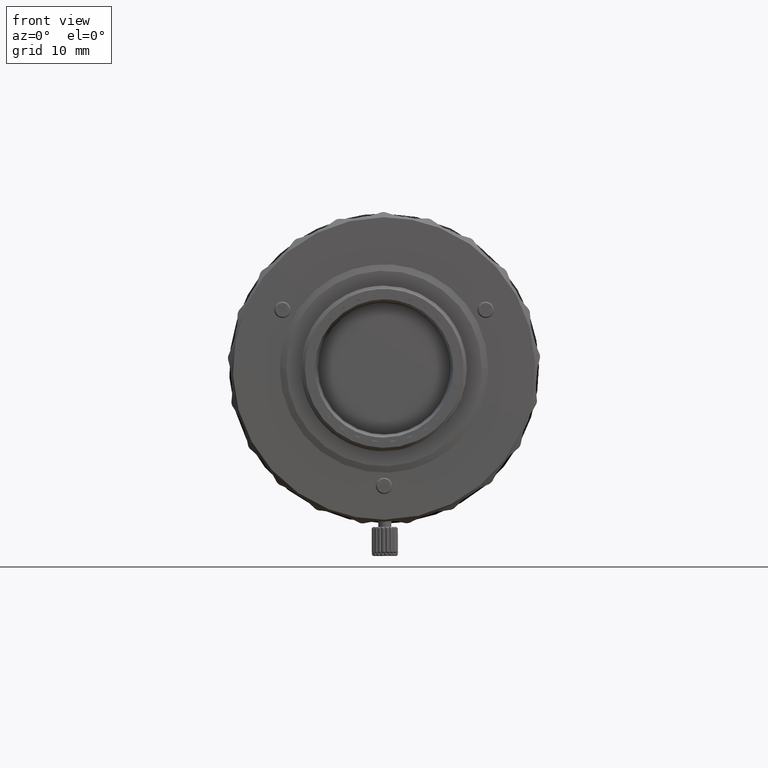
[diagram: clean part render]
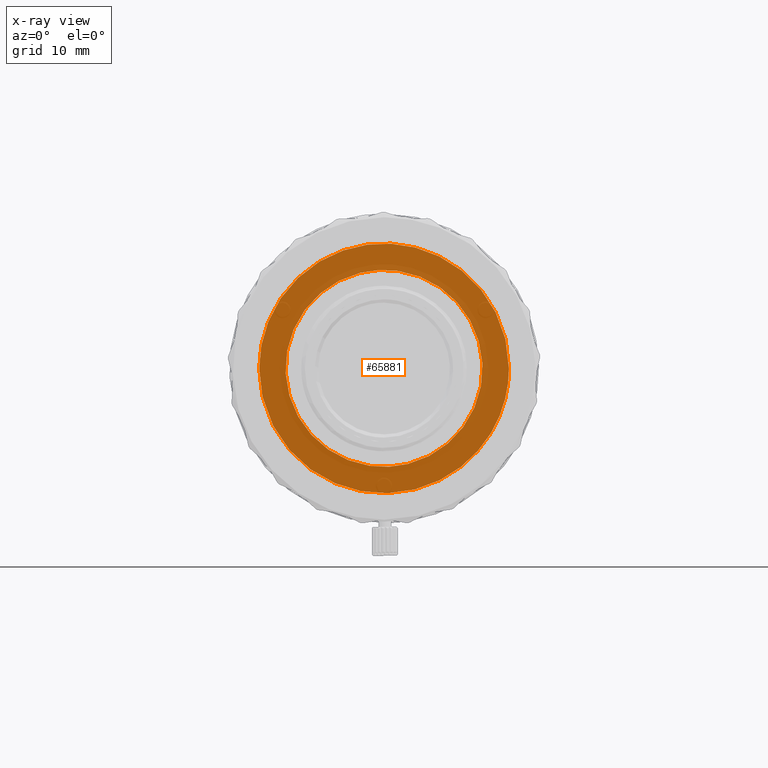
[diagram: x-ray — body ghosted, one internal face saturated and labeled with its STEP entity id]
A machine part, front view, then the same camera in x-ray: the body is ghosted and one INTERNAL B-rep face — a face not visible from any outside direction — is saturated and labeled: STEP entity #65881.
In plain terms, the highlighted face is a freeform B-spline surface patch.
Its self-contained STEP definition (entity closure, byte-faithful):
#655 = CARTESIAN_POINT ( 'NONE',  ( 14.90654364671266485, 78.89500000000001023, -2.490524131531334007 ) ) ;
#839 = CARTESIAN_POINT ( 'NONE',  ( -3.630246343410010290, 78.89499999915169326, 14.66861245485504028 ) ) ;
#1062 = CARTESIAN_POINT ( 'NONE',  ( 13.42969820995294228, 78.89500000000001023, -6.931935332601380395 ) ) ;
#1243 = CARTESIAN_POINT ( 'NONE',  ( -11.86235611299090209, 78.89500000000001023, -9.364422102009701376 ) ) ;
#1645 = CARTESIAN_POINT ( 'NONE',  ( -11.05874624287399755, 78.89500000000002444, -10.30111006777746674 ) ) ;
#1860 = CARTESIAN_POINT ( 'NONE',  ( 5.986201008622265896, 78.89500000000002444, -13.87710697493376166 ) ) ;
#1960 = CARTESIAN_POINT ( 'NONE',  ( -3.630246343410010290, 78.89499999915169326, 14.66861245485504028 ) ) ;
#2047 = CARTESIAN_POINT ( 'NONE',  ( -8.833252129546536935, 78.89499999999999602, -12.26300164020946859 ) ) ;
#2254 = CARTESIAN_POINT ( 'NONE',  ( 9.173707722116670737, 78.89500000000002444, -12.01049021053346699 ) ) ;
#2441 = CARTESIAN_POINT ( 'NONE',  ( -14.76521298622846601, 78.89500000000001023, 3.224506110859732821 ) ) ;
#2659 = CARTESIAN_POINT ( 'NONE',  ( 3.472875211644665505, 78.89500000000001023, 14.70873674128466746 ) ) ;
#2794 = ORIENTED_EDGE ( 'NONE', *, *, #29790, .F. ) ;
#2850 = CARTESIAN_POINT ( 'NONE',  ( -14.71018397306919567, 78.89499999999998181, 3.466879527880266210 ) ) ;
#3050 = CARTESIAN_POINT ( 'NONE',  ( 5.356196061968401700, 78.89499999999999602, 14.13218953882559781 ) ) ;
#3461 = CARTESIAN_POINT ( 'NONE',  ( -0.2093646693116016644, 78.89500000000001023, 15.11773220068173273 ) ) ;
#3874 = CARTESIAN_POINT ( 'NONE',  ( 8.223998769115794971, 78.89499999999999602, 12.67965212383650275 ) ) ;
#4286 = CARTESIAN_POINT ( 'NONE',  ( 10.88789578653479850, 78.89500000000002444, 10.48153855745113994 ) ) ;
#4454 = CARTESIAN_POINT ( 'NONE',  ( -19.37979999999999947, 78.89500000000001023, -19.37979999999999947 ) ) ;
#5399 = CARTESIAN_POINT ( 'NONE',  ( -4.112888684820299012, 78.89499999999999602, 14.54281526252829693 ) ) ;
#6201 = CARTESIAN_POINT ( 'NONE',  ( -5.296092157482133800, 78.89500000000002444, 14.15485505471693095 ) ) ;
#7214 = CARTESIAN_POINT ( 'NONE',  ( 7.317229974891466426, 78.89500000000001023, -13.23060467960293529 ) ) ;
#7397 = CARTESIAN_POINT ( 'NONE',  ( -15.10638585749626905, 78.89500000000001023, -0.4535984308533364540 ) ) ;
#7619 = CARTESIAN_POINT ( 'NONE',  ( 4.590198546451104811, 78.89500000000001023, -14.39928493660469400 ) ) ;
#7795 = CARTESIAN_POINT ( 'NONE',  ( -10.88789578653480028, 78.89500000000002444, -10.48153855745113638 ) ) ;
#8196 = CARTESIAN_POINT ( 'NONE',  ( -14.86324095001753243, 78.89499999999999602, 2.737338584760266702 ) ) ;
#8411 = CARTESIAN_POINT ( 'NONE',  ( 13.19538343056707852, 78.89500000000003865, -7.368200444494980239 ) ) ;
#8607 = CARTESIAN_POINT ( 'NONE',  ( -5.356196061968399924, 78.89500000000001023, -14.13218953882560136 ) ) ;
#8645 = CARTESIAN_POINT ( 'NONE',  ( -19.14999999683384857, 78.89500000000001023, -1.146359653401246171E-09 ) ) ;
#8809 = CARTESIAN_POINT ( 'NONE',  ( 8.162108185958102169, 78.89500000000002444, -12.71959201825583463 ) ) ;
#8996 = CARTESIAN_POINT ( 'NONE',  ( -13.57147329447066753, 78.89500000000002444, -6.650098486464399272 ) ) ;
#9207 = CARTESIAN_POINT ( 'NONE',  ( 6.273925612417464492, 78.89500000000001023, 13.74941602117746164 ) ) ;
#9407 = CARTESIAN_POINT ( 'NONE',  ( 1.925775454671200482, 78.89500000000002444, -14.98999041694000489 ) ) ;
#9624 = CARTESIAN_POINT ( 'NONE',  ( -3.148615653851063456, 78.89500000000001023, 14.78780831494413661 ) ) ;
#10031 = CARTESIAN_POINT ( 'NONE',  ( 14.72548991947146924, 78.89500000000002444, 3.401101902706934244 ) ) ;
#10226 = CARTESIAN_POINT ( 'NONE',  ( 3.630246343410010290, 78.89499999915169326, -14.66861245485504028 ) ) ;
#10254 = ORIENTED_EDGE ( 'NONE', *, *, #16160, .F. ) ;
#10638 = CARTESIAN_POINT ( 'NONE',  ( 0.2093646693116024138, 78.89499999999998181, -15.11773220068173096 ) ) ;
#11021 = CARTESIAN_POINT ( 'NONE',  ( -19.37979999999999947, 78.89500000000001023, 19.37979999999999947 ) ) ;
#11047 = CARTESIAN_POINT ( 'NONE',  ( -1.769641598556335627, 78.89500000000001023, -15.00924180961516363 ) ) ;
#11222 = CARTESIAN_POINT ( 'NONE',  ( -19.14999999683384857, 78.89500000000001023, -1.146359653401246171E-09 ) ) ;
#12343 = CARTESIAN_POINT ( 'NONE',  ( -11.34221474543226726, 78.89500000000002444, 9.988080768167336032 ) ) ;
#12857 = CARTESIAN_POINT ( 'NONE',  ( 19.14999999683384857, 78.89500000000001023, -5.236974208091460130E-09 ) ) ;
#13131 = CARTESIAN_POINT ( 'NONE',  ( -3.872456261358668161, 78.89499999999998181, 14.60866937654226660 ) ) ;
#13343 = CARTESIAN_POINT ( 'NONE',  ( 9.370016581924543786, 78.89500000000003865, -11.85798321615929574 ) ) ;
#13531 = CARTESIAN_POINT ( 'NONE',  ( -8.773321880988135035, 78.89500000000002444, 12.30599903399533623 ) ) ;
#13744 = CARTESIAN_POINT ( 'NONE',  ( 15.07175636419346709, 78.89499999999999602, 1.198375113820133953 ) ) ;
#13927 = CARTESIAN_POINT ( 'NONE',  ( -13.54216032630120026, 78.89500000000001023, 6.709504834429467657 ) ) ;
#14318 = CARTESIAN_POINT ( 'NONE',  ( -12.72534264767919332, 78.89499999999996760, -8.164295309436933934 ) ) ;
#14724 = CARTESIAN_POINT ( 'NONE',  ( -6.273925612417467157, 78.89499999999999602, -13.74941602117746520 ) ) ;
#14937 = CARTESIAN_POINT ( 'NONE',  ( 15.01658416661186557, 78.89500000000001023, -1.758571798656933138 ) ) ;
#15122 = CARTESIAN_POINT ( 'NONE',  ( -13.78290308819013532, 78.89500000000001023, -6.200022553898797639 ) ) ;
#15325 = CARTESIAN_POINT ( 'NONE',  ( 11.39175182688839350, 78.89499999999999602, 9.931602449584936210 ) ) ;
#15493 = FACE_OUTER_BOUND ( 'NONE', #48440, .T. ) ;
#15519 = CARTESIAN_POINT ( 'NONE',  ( -6.047308421762298991, 78.89500000000001023, -13.85058957844393035 ) ) ;
#15730 = CARTESIAN_POINT ( 'NONE',  ( 2.508256648531333788, 78.89499999999999602, 14.90360466128306349 ) ) ;
#16146 = CARTESIAN_POINT ( 'NONE',  ( 13.88197621105313395, 78.89500000000001023, 5.974865553654437278 ) ) ;
#16160 = EDGE_CURVE ( 'NONE', #43725, #78682, #62433, .T. ) ;
#16969 = CARTESIAN_POINT ( 'NONE',  ( 12.72534264767919510, 78.89500000000001023, 8.164295309436932158 ) ) ;
#18069 = CARTESIAN_POINT ( 'NONE',  ( -10.49456721585506713, 78.89499999999999602, 10.88369513736559924 ) ) ;
#18357 = ORIENTED_EDGE ( 'NONE', *, *, #57263, .T. ) ;
#18463 = CARTESIAN_POINT ( 'NONE',  ( -6.883582660542133524, 78.89499999999998181, 13.46127873100119920 ) ) ;
#18868 = CARTESIAN_POINT ( 'NONE',  ( -9.944811785864269282, 78.89500000000001023, 11.38018317155720283 ) ) ;
#19886 = CARTESIAN_POINT ( 'NONE',  ( 15.10638585749626195, 78.89499999999999602, 0.4535984308533356768 ) ) ;
#20073 = CARTESIAN_POINT ( 'NONE',  ( -3.232425268843834854, 78.89500000000001023, -14.76344838114923519 ) ) ;
#20463 = CARTESIAN_POINT ( 'NONE',  ( -13.19538343056706431, 78.89500000000001023, 7.368200444494999779 ) ) ;
#20675 = CARTESIAN_POINT ( 'NONE',  ( 3.630246343410010290, 78.89499999915169326, -14.66861245485504028 ) ) ;
#20856 = CARTESIAN_POINT ( 'NONE',  ( -11.39175182688839882, 78.89500000000001023, -9.931602449584930881 ) ) ;
#21072 = CARTESIAN_POINT ( 'NONE',  ( 14.71018397306919212, 78.89499999999999602, -3.466879527880267542 ) ) ;
#21251 = CARTESIAN_POINT ( 'NONE',  ( -14.87489744429223215, 78.89500000000001023, -2.673159815696701358 ) ) ;
#21458 = CARTESIAN_POINT ( 'NONE',  ( 10.53749954519240006, 78.89500000000001023, 10.83374489795326490 ) ) ;
#21647 = CARTESIAN_POINT ( 'NONE',  ( -13.42969820995293340, 78.89500000000001023, 6.931935332601405264 ) ) ;
#21855 = CARTESIAN_POINT ( 'NONE',  ( 14.77947075353796258, 78.89499999999996760, 3.158417565865098364 ) ) ;
#22152 = CARTESIAN_POINT ( 'NONE',  ( -19.14999999312184187, 78.89500000000001023, -38.29999998085001067 ) ) ;
#22679 = CARTESIAN_POINT ( 'NONE',  ( 1.025547956640528779, 78.89500000000001023, 15.07833398459226082 ) ) ;
#23098 = CARTESIAN_POINT ( 'NONE',  ( 14.91664810647439232, 78.89499999999998181, 2.429358369043465693 ) ) ;
#23702 = CARTESIAN_POINT ( 'NONE',  ( 2.662294094781194165, 78.89500000000001023, -14.88305229294400434 ) ) ;
#24138 = ORIENTED_EDGE ( 'NONE', *, *, #48326, .T. ) ;
#24277 = CARTESIAN_POINT ( 'NONE',  ( -19.14999999999999858, 78.89500000000001023, 11.21781028237952960 ) ) ;
#24676 = CARTESIAN_POINT ( 'NONE',  ( 3.927726403914407392E-09, 78.89500000000001023, 19.14999999999999858 ) ) ;
#25000 = CARTESIAN_POINT ( 'NONE',  ( -5.527680418645732452, 78.89500000000001023, 14.06603887511203155 ) ) ;
#25620 = CARTESIAN_POINT ( 'NONE',  ( 15.06594728206333222, 78.89500000000002444, -1.267740379248928129 ) ) ;
#25798 = CARTESIAN_POINT ( 'NONE',  ( -4.828259702804265530, 78.89500000000001023, 14.32118787295826401 ) ) ;
#26018 = CARTESIAN_POINT ( 'NONE',  ( 14.76521298622845713, 78.89499999999999602, -3.224506110859746144 ) ) ;
#26196 = CARTESIAN_POINT ( 'NONE',  ( -3.472875211644665505, 78.89499999999999602, -14.70873674128466568 ) ) ;
#26405 = CARTESIAN_POINT ( 'NONE',  ( 5.527680418645736893, 78.89500000000002444, -14.06603887511203510 ) ) ;
#26591 = CARTESIAN_POINT ( 'NONE',  ( -14.37759569105823410, 78.89500000000001023, 4.657562563292833246 ) ) ;
#26989 = CARTESIAN_POINT ( 'NONE',  ( -8.223998769115800300, 78.89500000000001023, -12.67965212383650098 ) ) ;
#27197 = CARTESIAN_POINT ( 'NONE',  ( 14.52205449027995954, 78.89499999999999602, -4.185460622396170116 ) ) ;
#27376 = CARTESIAN_POINT ( 'NONE',  ( -14.90654364671266663, 78.89499999999999602, 2.490524131531335339 ) ) ;
#27597 = CARTESIAN_POINT ( 'NONE',  ( 8.017651437765197286, 78.89500000000001023, 12.81114812044466689 ) ) ;
#27784 = CARTESIAN_POINT ( 'NONE',  ( -15.06594728206332867, 78.89499999999999602, 1.267740379248932348 ) ) ;
#28006 = CARTESIAN_POINT ( 'NONE',  ( 2.749134594215164817, 78.89499999999999602, 14.86103093253496432 ) ) ;
#28190 = CARTESIAN_POINT ( 'NONE',  ( -0.2854376194369321329, 78.89499999999999602, -15.11653083395986030 ) ) ;
#28405 = CARTESIAN_POINT ( 'NONE',  ( -0.9476607471584020947, 78.89500000000003865, 15.08341852059973398 ) ) ;
#28814 = CARTESIAN_POINT ( 'NONE',  ( 13.22726845995279632, 78.89499999999999602, 7.310831297875970414 ) ) ;
#29226 = CARTESIAN_POINT ( 'NONE',  ( 1.769641598556338957, 78.89500000000001023, 15.00924180961516718 ) ) ;
#29790 = EDGE_CURVE ( 'NONE', #78682, #43725, #42824, .T. ) ;
#32131 = CARTESIAN_POINT ( 'NONE',  ( 11.96729612469746229, 78.89500000000001023, -9.229969258256268461 ) ) ;
#32304 = CARTESIAN_POINT ( 'NONE',  ( -13.22726845995279987, 78.89500000000001023, -7.310831297875965085 ) ) ;
#32703 = CARTESIAN_POINT ( 'NONE',  ( -14.77947075353796080, 78.89499999999998181, -3.158417565865098364 ) ) ;
#32910 = CARTESIAN_POINT ( 'NONE',  ( 14.58809588422120029, 78.89499999999999602, -3.949205669862931423 ) ) ;
#33101 = CARTESIAN_POINT ( 'NONE',  ( -10.35689858175866540, 78.89499999999999602, -11.00648358634586543 ) ) ;
#33312 = CARTESIAN_POINT ( 'NONE',  ( 13.54216032630119670, 78.89500000000002444, -6.709504834429469433 ) ) ;
#33497 = CARTESIAN_POINT ( 'NONE',  ( -4.660661861657999339, 78.89499999999999602, -14.38290849203999322 ) ) ;
#33705 = CARTESIAN_POINT ( 'NONE',  ( 9.425729979800934188, 78.89500000000001023, 11.82138669576626455 ) ) ;
#33894 = CARTESIAN_POINT ( 'NONE',  ( -13.10426037323919424, 78.89499999999998181, -7.529012907326530168 ) ) ;
#34106 = CARTESIAN_POINT ( 'NONE',  ( 6.047308421762298991, 78.89500000000002444, 13.85058957844393923 ) ) ;
#34294 = CARTESIAN_POINT ( 'NONE',  ( 1.193186727924394175, 78.89500000000002444, -15.06599023739003584 ) ) ;
#34509 = CARTESIAN_POINT ( 'NONE',  ( 4.190638856506659238, 78.89500000000002444, 14.52684072917586988 ) ) ;
#34920 = CARTESIAN_POINT ( 'NONE',  ( 11.05874624287400110, 78.89500000000001023, 10.30111006777746852 ) ) ;
#34975 = B_SPLINE_CURVE_WITH_KNOTS ( 'NONE', 3,
 ( #839, #13131, #5399, #55655, #25798, #6201, #25000, #80550, #38035, #18463, #68298, #69489, #62996, #50707, #13531, #49108, #74017, #49920, #18868, #18069, #42977, #12343, #37237, #37638, #62201, #69888, #44981, #57246, #20463, #21647, #13927, #58457, #58855, #51509, #26591, #52295, #52692, #2850, #2441, #8196, #27376, #45375, #27784, #46164, #40039, #77197, #7397, #38835, #63773, #76409, #21251, #32703, #39631, #64983, #71066, #70285, #57651, #51119, #15122, #8996, #70673, #32304, #33894, #14318, #39236, #76799, #1243, #77603, #20856, #1645, #7795, #64184, #33101, #46562, #58051, #2047, #51907, #26989, #71469, #45770, #76008, #14724, #15519, #64580, #8607, #33497, #63383, #26196, #20073, #53527, #40840, #66605, #11047, #46966, #47385, #28190, #10638, #78839, #34294, #35538, #9407, #23702, #60493, #10226 ),
 .UNSPECIFIED., .F., .F.,
 ( 4, 2, 2, 2, 2, 2, 2, 2, 2, 2, 2, 2, 2, 2, 2, 2, 2, 2, 2, 2, 2, 2, 2, 2, 2, 2, 2, 2, 2, 2, 2, 2, 2, 2, 2, 2, 2, 2, 2, 2, 2, 2, 2, 2, 2, 2, 2, 2, 2, 2, 2, 4 ),
 ( 0.000000000000000000, 0.01562499999999997224, 0.03124999999999994449, 0.04687499999999991673, 0.06249999999999988898, 0.09374999999999983347, 0.1093749999999997502, 0.1249999999999996669, 0.1406249999999995837, 0.1562499999999995004, 0.1874999999999994171, 0.2031249999999994171, 0.2187499999999994171, 0.2499999999999993339, 0.2656249999999993894, 0.2812499999999993894, 0.3124999999999994449, 0.3281249999999994449, 0.3437499999999995004, 0.3593749999999995004, 0.3749999999999995559, 0.4062499999999996669, 0.4218749999999997224, 0.4374999999999998335, 0.4687499999999999445, 0.4843749999999999445, 0.5000000000000000000, 0.5312500000000000000, 0.5468750000000000000, 0.5625000000000000000, 0.5781250000000000000, 0.5937499999999998890, 0.6250000000000000000, 0.6406250000000000000, 0.6562499999999998890, 0.6718749999999998890, 0.6874999999999998890, 0.7187499999999997780, 0.7343749999999997780, 0.7499999999999997780, 0.7812499999999997780, 0.7968749999999997780, 0.8124999999999997780, 0.8437499999999997780, 0.8593749999999997780, 0.8749999999999997780, 0.8906249999999997780, 0.9062499999999996669, 0.9374999999999997780, 0.9531249999999998890, 0.9687499999999998890, 1.000000000000000000 ),
 .UNSPECIFIED. ) ;
#35538 = CARTESIAN_POINT ( 'NONE',  ( 1.683093265757194867, 78.89500000000001023, -15.01915289127256337 ) ) ;
#37237 = CARTESIAN_POINT ( 'NONE',  ( -11.50340622224236675, 78.89499999999999602, 9.802010986671932713 ) ) ;
#37638 = CARTESIAN_POINT ( 'NONE',  ( -11.81649977234943272, 78.89499999999999602, 9.422213521550865778 ) ) ;
#38035 = CARTESIAN_POINT ( 'NONE',  ( -6.214815219838134119, 78.89500000000002444, 13.77619927945359990 ) ) ;
#38835 = CARTESIAN_POINT ( 'NONE',  ( -15.07175636419346176, 78.89499999999999602, -1.198375113820133508 ) ) ;
#39057 = CARTESIAN_POINT ( 'NONE',  ( 14.37759569105823942, 78.89500000000001023, -4.657562563292819924 ) ) ;
#39236 = CARTESIAN_POINT ( 'NONE',  ( -12.45273942999093286, 78.89500000000001023, -8.574350598416527802 ) ) ;
#39452 = CARTESIAN_POINT ( 'NONE',  ( 11.50340622224237741, 78.89500000000001023, -9.802010986671920278 ) ) ;
#39631 = CARTESIAN_POINT ( 'NONE',  ( -14.72548991947146568, 78.89499999999999602, -3.401101902706932467 ) ) ;
#39851 = CARTESIAN_POINT ( 'NONE',  ( 10.84470620973226396, 78.89499999999999602, -10.53480325945814045 ) ) ;
#40039 = CARTESIAN_POINT ( 'NONE',  ( -15.11051710760166600, 78.89500000000002444, 0.2830149118793349738 ) ) ;
#40253 = CARTESIAN_POINT ( 'NONE',  ( 11.86235611299088966, 78.89500000000001023, 9.364422102009710258 ) ) ;
#40653 = CARTESIAN_POINT ( 'NONE',  ( 10.35689858175866362, 78.89499999999999602, 11.00648358634586721 ) ) ;
#40840 = CARTESIAN_POINT ( 'NONE',  ( -2.508256648531335564, 78.89500000000001023, -14.90360466128306705 ) ) ;
#41055 = CARTESIAN_POINT ( 'NONE',  ( 14.54748820065347381, 78.89500000000003865, 4.118268998565334016 ) ) ;
#41223 = CARTESIAN_POINT ( 'NONE',  ( 19.37979999999999947, 78.89500000000001023, 19.37979999999999947 ) ) ;
#41878 = CARTESIAN_POINT ( 'NONE',  ( 4.660661861657990457, 78.89500000000002444, 14.38290849204000033 ) ) ;
#42824 =( BOUNDED_CURVE ( )  B_SPLINE_CURVE ( 3, ( #54455, #22152, #53626, #73203 ),
 .UNSPECIFIED., .F., .T. ) 
 B_SPLINE_CURVE_WITH_KNOTS ( ( 4, 4 ),
 ( -3.141592653589795336, 0.000000000000000000 ),
 .UNSPECIFIED. ) 
 CURVE ( )  GEOMETRIC_REPRESENTATION_ITEM ( )  RATIONAL_B_SPLINE_CURVE ( ( 1.000000000000000000, 0.3333333335299309419, 0.3333333335299309419, 1.000000000000000000 ) ) 
 REPRESENTATION_ITEM ( '' )  );
#42977 = CARTESIAN_POINT ( 'NONE',  ( -10.84470620973226751, 78.89500000000001023, 10.53480325945813156 ) ) ;
#43452 = CARTESIAN_POINT ( 'NONE',  ( 19.15000000460162255, 78.89500000000001023, 11.21781027452407287 ) ) ;
#43725 = VERTEX_POINT ( 'NONE', #12857 ) ;
#44392 = CARTESIAN_POINT ( 'NONE',  ( 3.872456261358669050, 78.89500000000002444, -14.60866937654226660 ) ) ;
#44795 = CARTESIAN_POINT ( 'NONE',  ( 7.953399002851868183, 78.89500000000001023, -12.85112028869092882 ) ) ;
#44884 = CARTESIAN_POINT ( 'NONE',  ( 3.630246343410010290, 78.89499999915169326, -14.66861245485504028 ) ) ;
#44981 = CARTESIAN_POINT ( 'NONE',  ( -12.68917924320640367, 78.89500000000002444, 8.220549597531332964 ) ) ;
#45197 = CARTESIAN_POINT ( 'NONE',  ( 13.85940807865680391, 78.89499999999999602, -6.042053902299056922 ) ) ;
#45375 = CARTESIAN_POINT ( 'NONE',  ( -15.01658416661186557, 78.89499999999998181, 1.758571798656934915 ) ) ;
#45587 = CARTESIAN_POINT ( 'NONE',  ( 9.944811785864263953, 78.89499999999999602, -11.38018317155720283 ) ) ;
#45770 = CARTESIAN_POINT ( 'NONE',  ( -7.381280588567598500, 78.89499999999999602, -13.19503928407866944 ) ) ;
#45986 = CARTESIAN_POINT ( 'NONE',  ( 11.34221474543227082, 78.89500000000001023, -9.988080768167334256 ) ) ;
#46164 = CARTESIAN_POINT ( 'NONE',  ( -15.10389296922293134, 78.89500000000001023, 0.5292072864481317529 ) ) ;
#46377 = CARTESIAN_POINT ( 'NONE',  ( 14.15828409068919491, 78.89499999999998181, 5.286878987642265493 ) ) ;
#46480 = B_SPLINE_CURVE_WITH_KNOTS ( 'NONE', 3,
 ( #20675, #44392, #76614, #7619, #51722, #64793, #26405, #1860, #51334, #70499, #7214, #44795, #8809, #69304, #64002, #2254, #13343, #76227, #45587, #63206, #39851, #45986, #39452, #57072, #32131, #77009, #64400, #70886, #8411, #1062, #33312, #45197, #58266, #56672, #39057, #27197, #32910, #21072, #26018, #69700, #655, #14937, #25620, #50532, #50931, #75821, #19886, #13744, #52910, #23098, #72501, #21855, #10031, #41055, #48017, #46377, #72078, #16146, #79052, #65997, #72913, #28814, #66808, #16969, #53747, #59069, #40253, #60297, #15325, #34920, #4286, #21458, #40653, #59889, #33705, #71281, #58660, #3874, #27597, #65187, #46771, #9207, #34106, #78642, #3050, #41878, #34509, #2659, #77416, #28006, #15730, #52513, #29226, #54157, #22679, #47604, #3461, #28405, #77817, #71675, #65593, #59485, #9624, #53325 ),
 .UNSPECIFIED., .F., .F.,
 ( 4, 2, 2, 2, 2, 2, 2, 2, 2, 2, 2, 2, 2, 2, 2, 2, 2, 2, 2, 2, 2, 2, 2, 2, 2, 2, 2, 2, 2, 2, 2, 2, 2, 2, 2, 2, 2, 2, 2, 2, 2, 2, 2, 2, 2, 2, 2, 2, 2, 2, 2, 4 ),
 ( 0.000000000000000000, 0.01562500000379709111, 0.03125000000759418223, 0.04687500001139127681, 0.06250000001518836446, 0.09375000002278249811, 0.1093750000265795580, 0.1250000000303765901, 0.1406250000341736639, 0.1562500000379706822, 0.1875000000455646909, 0.2031250000493617369, 0.2187500000531587274, 0.2500000000607527362, 0.2656250000645496989, 0.2812500000683467172, 0.3125000000759406427, 0.3281250000797376054, 0.3437500000835345682, 0.3593750000873315309, 0.3750000000911284381, 0.4062500000987223081, 0.4218750001025192709, 0.4375000001063161781, 0.4687500001139099925, 0.4843750001177069553, 0.5000000001215038070, 0.5312500001290976215, 0.5468750001328945842, 0.5625000001366913249, 0.5781250001404882877, 0.5937500001442851394, 0.6250000001518789539, 0.6406250001556760276, 0.6562500001594728793, 0.6718750001632699531, 0.6875000001670668048, 0.7187500001746609524, 0.7343750001784580261, 0.7500000001822550999, 0.7812500001898494695, 0.7968750001936466543, 0.8125000001974438391, 0.8437500002050383197, 0.8593750002088353934, 0.8750000002126326892, 0.8906250002164298740, 0.9062500002202270588, 0.9375000002278213174, 0.9531250002316185022, 0.9687500002354157980, 1.000000000243010057 ),
 .UNSPECIFIED. ) ;
#46562 = CARTESIAN_POINT ( 'NONE',  ( -9.808383769044667133, 78.89500000000001023, -11.50595866787106658 ) ) ;
#46771 = CARTESIAN_POINT ( 'NONE',  ( 6.946710756978672130, 78.89500000000002444, 13.42895765611546288 ) ) ;
#46966 = CARTESIAN_POINT ( 'NONE',  ( -1.275170523509669973, 78.89500000000002444, -15.05931310171823334 ) ) ;
#47385 = CARTESIAN_POINT ( 'NONE',  ( -1.025547956640532110, 78.89499999999999602, -15.07833398459226082 ) ) ;
#47604 = CARTESIAN_POINT ( 'NONE',  ( 0.2854376194369365738, 78.89500000000003865, 15.11653083395987096 ) ) ;
#48017 = CARTESIAN_POINT ( 'NONE',  ( 14.40652456128159642, 78.89500000000001023, 4.587352315974264627 ) ) ;
#48326 = EDGE_CURVE ( 'NONE', #69826, #48528, #34975, .T. ) ;
#48440 = EDGE_LOOP ( 'NONE', ( #10254, #2794 ) ) ;
#48528 = VERTEX_POINT ( 'NONE', #44884 ) ;
#49108 = CARTESIAN_POINT ( 'NONE',  ( -9.173707722116667185, 78.89500000000002444, 12.01049021053346699 ) ) ;
#49920 = CARTESIAN_POINT ( 'NONE',  ( -9.754866180027468303, 78.89500000000003865, 11.54346406212449949 ) ) ;
#50532 = CARTESIAN_POINT ( 'NONE',  ( 15.10389296922293134, 78.89499999999999602, -0.5292072864481331962 ) ) ;
#50707 = CARTESIAN_POINT ( 'NONE',  ( -8.572832233076100650, 78.89500000000001023, 12.44646853045676771 ) ) ;
#50931 = CARTESIAN_POINT ( 'NONE',  ( 15.11051710760166067, 78.89500000000001023, -0.2830149118793429119 ) ) ;
#51119 = CARTESIAN_POINT ( 'NONE',  ( -13.88197621105313750, 78.89500000000002444, -5.974865553654432837 ) ) ;
#51334 = CARTESIAN_POINT ( 'NONE',  ( 6.214815219838133231, 78.89500000000001023, -13.77619927945360168 ) ) ;
#51509 = CARTESIAN_POINT ( 'NONE',  ( -14.29957517116186594, 78.89500000000001023, 4.891841506198534972 ) ) ;
#51722 = CARTESIAN_POINT ( 'NONE',  ( 4.828259702804265530, 78.89500000000002444, -14.32118787295826756 ) ) ;
#51907 = CARTESIAN_POINT ( 'NONE',  ( -8.632404410759795255, 78.89500000000001023, -12.40521372952730061 ) ) ;
#52295 = CARTESIAN_POINT ( 'NONE',  ( -14.52205449027996309, 78.89499999999999602, 4.185460622396163011 ) ) ;
#52513 = CARTESIAN_POINT ( 'NONE',  ( 2.016258823560667768, 78.89500000000002444, 14.97810012152813819 ) ) ;
#52692 = CARTESIAN_POINT ( 'NONE',  ( -14.58809588422119141, 78.89499999999996760, 3.949205669862932311 ) ) ;
#52910 = CARTESIAN_POINT ( 'NONE',  ( 15.02401204343599694, 78.89500000000001023, 1.694436314376665864 ) ) ;
#53325 = CARTESIAN_POINT ( 'NONE',  ( -3.630246343410010290, 78.89499999915169326, 14.66861245485504028 ) ) ;
#53527 = CARTESIAN_POINT ( 'NONE',  ( -2.749134594215168814, 78.89500000000001023, -14.86103093253497143 ) ) ;
#53626 = CARTESIAN_POINT ( 'NONE',  ( 19.14999998428909578, 78.89500000000001023, -38.29999998526638194 ) ) ;
#53747 = CARTESIAN_POINT ( 'NONE',  ( 12.45273942999093464, 78.89499999999998181, 8.574350598416522473 ) ) ;
#54157 = CARTESIAN_POINT ( 'NONE',  ( 1.275170523509668641, 78.89499999999998181, 15.05931310171822979 ) ) ;
#54455 = CARTESIAN_POINT ( 'NONE',  ( -19.14999999683384857, 78.89500000000001023, -1.146359653401246171E-09 ) ) ;
#55655 = CARTESIAN_POINT ( 'NONE',  ( -4.590198546451096817, 78.89499999999999602, 14.39928493660469400 ) ) ;
#56672 = CARTESIAN_POINT ( 'NONE',  ( 14.29957517116186949, 78.89500000000001023, -4.891841506198535861 ) ) ;
#57072 = CARTESIAN_POINT ( 'NONE',  ( 11.81649977234944338, 78.89499999999999602, -9.422213521550855120 ) ) ;
#57246 = CARTESIAN_POINT ( 'NONE',  ( -13.07285823678999925, 78.89500000000001023, 7.583449990334533375 ) ) ;
#57263 = EDGE_CURVE ( 'NONE', #48528, #69826, #46480, .T. ) ;
#57651 = CARTESIAN_POINT ( 'NONE',  ( -14.06992378534966903, 78.89500000000002444, -5.517746523733767283 ) ) ;
#58051 = CARTESIAN_POINT ( 'NONE',  ( -9.425729979800941294, 78.89500000000001023, -11.82138669576626633 ) ) ;
#58266 = CARTESIAN_POINT ( 'NONE',  ( 14.04814025061626559, 78.89500000000001023, -5.589362252287726207 ) ) ;
#58457 = CARTESIAN_POINT ( 'NONE',  ( -13.85940807865680036, 78.89499999999999602, 6.042053902299065804 ) ) ;
#58660 = CARTESIAN_POINT ( 'NONE',  ( 8.632404410759800584, 78.89500000000001023, 12.40521372952729884 ) ) ;
#58855 = CARTESIAN_POINT ( 'NONE',  ( -14.04814025061626381, 78.89500000000001023, 5.589362252287735977 ) ) ;
#59069 = CARTESIAN_POINT ( 'NONE',  ( 12.01345622432413229, 78.89499999999999602, 9.169764527130535470 ) ) ;
#59485 = CARTESIAN_POINT ( 'NONE',  ( -2.662294094781202158, 78.89499999999999602, 14.88305229294399901 ) ) ;
#59889 = CARTESIAN_POINT ( 'NONE',  ( 9.808383769044667133, 78.89500000000001023, 11.50595866787106303 ) ) ;
#60297 = CARTESIAN_POINT ( 'NONE',  ( 11.55081113810249427, 78.89499999999999602, 9.746109782383705067 ) ) ;
#60493 = CARTESIAN_POINT ( 'NONE',  ( 3.148615653851064788, 78.89499999999998181, -14.78780831494413306 ) ) ;
#61876 = CARTESIAN_POINT ( 'NONE',  ( -11.21781027845180034, 78.89500000000001023, 19.15000000230081056 ) ) ;
#62201 = CARTESIAN_POINT ( 'NONE',  ( -11.96729612469746762, 78.89499999999999602, 9.229969258256264908 ) ) ;
#62433 =( BOUNDED_CURVE ( )  B_SPLINE_CURVE ( 3, ( #66771, #43452, #80227, #24676, #61876, #24277, #11222 ),
 .UNSPECIFIED., .F., .T. ) 
 B_SPLINE_CURVE_WITH_KNOTS ( ( 4, 3, 4 ),
 ( -3.141592653589795336, -1.570796326794897668, 0.000000000000000000 ),
 .UNSPECIFIED. ) 
 CURVE ( )  GEOMETRIC_REPRESENTATION_ITEM ( )  RATIONAL_B_SPLINE_CURVE ( ( 1.000000000000000000, 0.8047378540760217192, 0.8047378540760217192, 1.000000000000000000, 0.8047378540760217192, 0.8047378540760217192, 1.000000000000000000 ) ) 
 REPRESENTATION_ITEM ( '' )  );
#62996 = CARTESIAN_POINT ( 'NONE',  ( -8.162108185958100393, 78.89500000000002444, 12.71959201825583641 ) ) ;
#63206 = CARTESIAN_POINT ( 'NONE',  ( 10.49456721585507246, 78.89499999999999602, -10.88369513736559568 ) ) ;
#63383 = CARTESIAN_POINT ( 'NONE',  ( -4.190638856506661902, 78.89500000000001023, -14.52684072917586988 ) ) ;
#63773 = CARTESIAN_POINT ( 'NONE',  ( -15.02401204343599694, 78.89500000000001023, -1.694436314376665198 ) ) ;
#64002 = CARTESIAN_POINT ( 'NONE',  ( 8.773321880988131483, 78.89500000000001023, -12.30599903399533090 ) ) ;
#64184 = CARTESIAN_POINT ( 'NONE',  ( -10.53749954519239651, 78.89500000000002444, -10.83374489795327023 ) ) ;
#64400 = CARTESIAN_POINT ( 'NONE',  ( 12.68917924320639656, 78.89500000000001023, -8.220549597531338293 ) ) ;
#64580 = CARTESIAN_POINT ( 'NONE',  ( -5.589363088849097494, 78.89500000000001023, -14.04164489746846201 ) ) ;
#64793 = CARTESIAN_POINT ( 'NONE',  ( 5.296092157482134688, 78.89500000000003865, -14.15485505471693450 ) ) ;
#64983 = CARTESIAN_POINT ( 'NONE',  ( -14.54748820065346848, 78.89500000000001023, -4.118268998565333128 ) ) ;
#65187 = CARTESIAN_POINT ( 'NONE',  ( 7.381280588567597611, 78.89500000000002444, 13.19503928407867122 ) ) ;
#65593 = CARTESIAN_POINT ( 'NONE',  ( -1.925775454671200926, 78.89499999999999602, 14.98999041693999956 ) ) ;
#65793 = B_SPLINE_SURFACE_WITH_KNOTS ( 'NONE', 1, 1, ( 
 ( #11021, #41223 ),
 ( #4454, #66974 ) ),
 .UNSPECIFIED., .F., .F., .F.,
 ( 2, 2 ),
 ( 2, 2 ),
 ( 0.000000000000000000, 1.000000000000000000 ),
 ( 0.000000000000000000, 1.000000000000000000 ),
 .UNSPECIFIED. ) ;
#65881 = ADVANCED_FACE ( 'NONE', ( #71446, #15493 ), #65793, .F. ) ;
#65997 = CARTESIAN_POINT ( 'NONE',  ( 13.57147329447066397, 78.89499999999998181, 6.650098486464398384 ) ) ;
#66605 = CARTESIAN_POINT ( 'NONE',  ( -2.016258823560667768, 78.89499999999999602, -14.97810012152813641 ) ) ;
#66771 = CARTESIAN_POINT ( 'NONE',  ( 19.14999999683384857, 78.89500000000001023, -5.236974208091460130E-09 ) ) ;
#66808 = CARTESIAN_POINT ( 'NONE',  ( 13.10426037323919779, 78.89500000000002444, 7.529012907326535498 ) ) ;
#66974 = CARTESIAN_POINT ( 'NONE',  ( 19.37979999999999947, 78.89500000000001023, -19.37979999999999947 ) ) ;
#68298 = CARTESIAN_POINT ( 'NONE',  ( -7.317229974891466426, 78.89500000000002444, 13.23060467960293174 ) ) ;
#69304 = CARTESIAN_POINT ( 'NONE',  ( 8.572832233076102426, 78.89499999999998181, -12.44646853045675705 ) ) ;
#69489 = CARTESIAN_POINT ( 'NONE',  ( -7.953399002851866406, 78.89500000000002444, 12.85112028869093237 ) ) ;
#69700 = CARTESIAN_POINT ( 'NONE',  ( 14.86324095001752710, 78.89499999999999602, -2.737338584760280469 ) ) ;
#69826 = VERTEX_POINT ( 'NONE', #1960 ) ;
#69888 = CARTESIAN_POINT ( 'NONE',  ( -12.41238540216547470, 78.89500000000001023, 8.632849093190666068 ) ) ;
#70285 = CARTESIAN_POINT ( 'NONE',  ( -14.15828409068920024, 78.89500000000002444, -5.286878987642264605 ) ) ;
#70499 = CARTESIAN_POINT ( 'NONE',  ( 6.883582660542132636, 78.89499999999998181, -13.46127873100119210 ) ) ;
#70673 = CARTESIAN_POINT ( 'NONE',  ( -13.46034636882319901, 78.89500000000002444, -6.872260235259835426 ) ) ;
#70886 = CARTESIAN_POINT ( 'NONE',  ( 13.07285823679000103, 78.89500000000002444, -7.583449990334528046 ) ) ;
#71066 = CARTESIAN_POINT ( 'NONE',  ( -14.40652456128160175, 78.89500000000001023, -4.587352315974267292 ) ) ;
#71281 = CARTESIAN_POINT ( 'NONE',  ( 8.833252129546533382, 78.89499999999999602, 12.26300164020946859 ) ) ;
#71446 = FACE_BOUND ( 'NONE', #75948, .T. ) ;
#71469 = CARTESIAN_POINT ( 'NONE',  ( -8.017651437765200839, 78.89500000000001023, -12.81114812044466866 ) ) ;
#71675 = CARTESIAN_POINT ( 'NONE',  ( -1.683093265757202639, 78.89500000000002444, 15.01915289127256514 ) ) ;
#72078 = CARTESIAN_POINT ( 'NONE',  ( 14.06992378534965837, 78.89499999999998181, 5.517746523733766395 ) ) ;
#72501 = CARTESIAN_POINT ( 'NONE',  ( 14.87489744429223748, 78.89499999999998181, 2.673159815696694697 ) ) ;
#72913 = CARTESIAN_POINT ( 'NONE',  ( 13.46034636882319191, 78.89499999999999602, 6.872260235259833649 ) ) ;
#73203 = CARTESIAN_POINT ( 'NONE',  ( 19.14999999683384857, 78.89500000000001023, -5.236974208091460130E-09 ) ) ;
#74017 = CARTESIAN_POINT ( 'NONE',  ( -9.370016581924534904, 78.89500000000002444, 11.85798321615930107 ) ) ;
#75821 = CARTESIAN_POINT ( 'NONE',  ( 15.11171653634352552, 78.89499999999999602, 0.2093991911953243246 ) ) ;
#75948 = EDGE_LOOP ( 'NONE', ( #24138, #18357 ) ) ;
#76008 = CARTESIAN_POINT ( 'NONE',  ( -6.946710756978663248, 78.89500000000002444, -13.42895765611547354 ) ) ;
#76227 = CARTESIAN_POINT ( 'NONE',  ( 9.754866180027478961, 78.89499999999999602, -11.54346406212449416 ) ) ;
#76409 = CARTESIAN_POINT ( 'NONE',  ( -14.91664810647440476, 78.89500000000002444, -2.429358369043465249 ) ) ;
#76614 = CARTESIAN_POINT ( 'NONE',  ( 4.112888684820300789, 78.89499999999999602, -14.54281526252829693 ) ) ;
#76799 = CARTESIAN_POINT ( 'NONE',  ( -12.01345622432413585, 78.89500000000002444, -9.169764527130530141 ) ) ;
#77009 = CARTESIAN_POINT ( 'NONE',  ( 12.41238540216546937, 78.89500000000001023, -8.632849093190662515 ) ) ;
#77197 = CARTESIAN_POINT ( 'NONE',  ( -15.11171653634353618, 78.89500000000005286, -0.2093991911953286267 ) ) ;
#77416 = CARTESIAN_POINT ( 'NONE',  ( 3.232425268843828636, 78.89500000000001023, 14.76344838114923697 ) ) ;
#77603 = CARTESIAN_POINT ( 'NONE',  ( -11.55081113810249782, 78.89500000000001023, -9.746109782383694409 ) ) ;
#77817 = CARTESIAN_POINT ( 'NONE',  ( -1.193186727924402168, 78.89500000000002444, 15.06599023739003229 ) ) ;
#78642 = CARTESIAN_POINT ( 'NONE',  ( 5.589363088849101047, 78.89499999999999602, 14.04164489746846911 ) ) ;
#78682 = VERTEX_POINT ( 'NONE', #8645 ) ;
#78839 = CARTESIAN_POINT ( 'NONE',  ( 0.9476607471584028719, 78.89500000000001023, -15.08341852059973753 ) ) ;
#79052 = CARTESIAN_POINT ( 'NONE',  ( 13.78290308819013354, 78.89500000000003865, 6.200022553898801192 ) ) ;
#80227 = CARTESIAN_POINT ( 'NONE',  ( 11.21781028630725174, 78.89500000000001023, 19.14999999769919015 ) ) ;
#80550 = CARTESIAN_POINT ( 'NONE',  ( -5.986201008622268560, 78.89500000000001023, 13.87710697493376699 ) ) ;